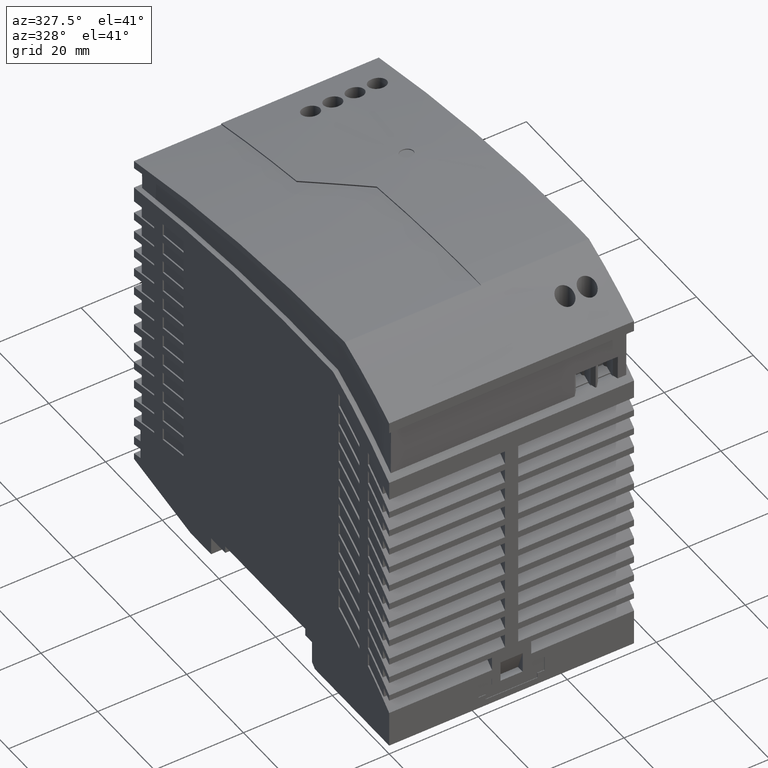
[diagram: clean part render]
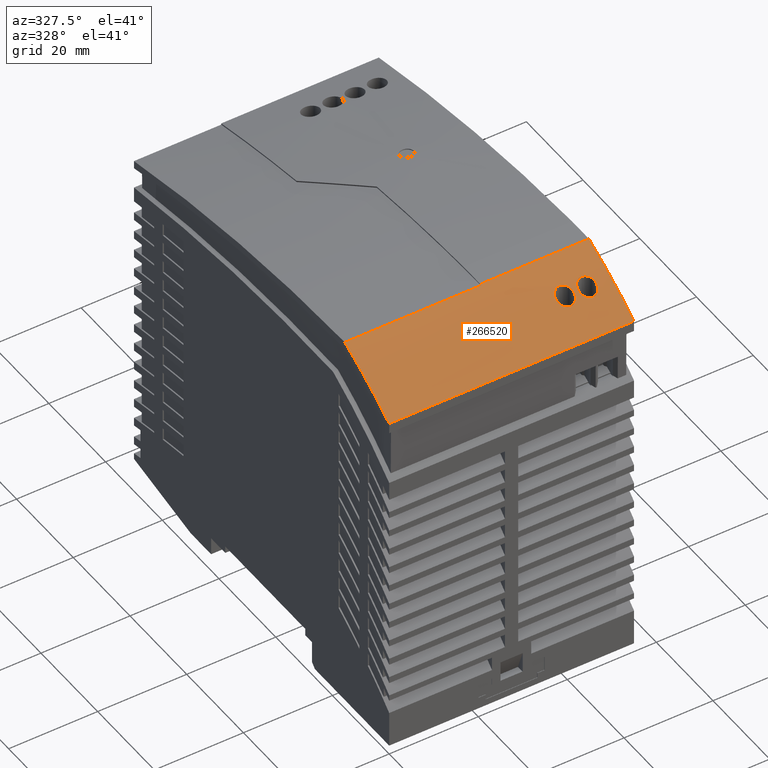
[diagram: same view with one face highlighted and labeled with its STEP entity id]
A machine part, auxiliary view. The second image highlights one B-rep face of the part: STEP entity #266520.
In plain terms, the highlighted cylindrical surface (partial cylindrical patch) has radius 100 mm, axis along (1, 0, 0).
Its self-contained STEP definition (entity closure, byte-faithful):
#6580=CARTESIAN_POINT('',(12.017640978482,-1.26055365418718,-54.));
#6590=DIRECTION('',(0.,0.,1.));
#6600=DIRECTION('',(0.,1.,0.));
#6610=AXIS2_PLACEMENT_3D('',#6580,#6590,#6600);
#6620=CIRCLE('',#6610,99.9999999999983);
#6630=CARTESIAN_POINT('',(-29.3456671638463,89.783813220005,-54.));
#6640=VERTEX_POINT('',#6630);
#6650=CARTESIAN_POINT('',(-45.0015236073532,80.8906171830753,-54.));
#6660=VERTEX_POINT('',#6650);
#6670=EDGE_CURVE('',#6640,#6660,#6620,.T.);
#174490=CARTESIAN_POINT('',(-34.8015236073671,87.1021411184533,-4.3));
#174500=VERTEX_POINT('',#174490);
#174530=CARTESIAN_POINT('',(12.017640978482,-1.26055365418718,1.));
#174540=DIRECTION('',(0.,0.,1.));
#174550=DIRECTION('',(0.,1.,0.));
#174560=AXIS2_PLACEMENT_3D('',#174530,#174540,#174550);
#174570=CYLINDRICAL_SURFACE('',#174560,99.9999999999983);
#174580=CARTESIAN_POINT('',(-36.8015236073671,78.9377474108009,-4.3));
#174590=DIRECTION('',(0.,-1.,0.));
#174600=DIRECTION('',(1.,0.,0.));
#174610=AXIS2_PLACEMENT_3D('',#174580,#174590,#174600);
#174620=CYLINDRICAL_SURFACE('',#174610,2.);
#174630=CARTESIAN_POINT('',(-38.4414010123466,85.075331592722,
-3.15509734185036));
#174640=CARTESIAN_POINT('',(-38.1916399297822,85.2213045553754,
-2.79735727283658));
#174650=CARTESIAN_POINT('',(-37.8405312535754,85.4248265798148,
-2.54402253402529));
#174660=CARTESIAN_POINT('',(-37.4592635155472,85.6418969538847,
-2.4112495630213));
#174670=CARTESIAN_POINT('',(-37.0755907904811,85.8603365794905,
-2.27763907747729));
#174680=CARTESIAN_POINT('',(-36.6638870953066,86.0910703282754,
-2.26439488354883));
#174690=CARTESIAN_POINT('',(-36.2748448652582,86.3056259531921,
-2.37059348435572));
#174700=CARTESIAN_POINT('',(-35.8823355676671,86.5220936554767,
-2.47773850612542));
#174710=CARTESIAN_POINT('',(-35.5150580771663,86.7209175869106,
-2.70715846185063));
#174720=CARTESIAN_POINT('',(-35.2409214758194,86.8679223042267,
-3.04919186642632));
#174730=CARTESIAN_POINT('',(-34.9942751883984,87.0001854445051,
-3.35692629151978));
#174740=CARTESIAN_POINT('',(-34.8347585509681,87.0845294180265,
-3.74637430460408));
#174750=CARTESIAN_POINT('',(-34.8061988678249,87.099663763195,
-4.16332818955215));
#174760=CARTESIAN_POINT('',(-34.8030854753441,87.1013136119071,
-4.20878181324091));
#174770=CARTESIAN_POINT('',(-34.8015236073671,87.1021411184533,
-4.25440728567266));
#174780=CARTESIAN_POINT('',(-34.8015236073671,87.1021411184533,-4.3));
#174790=B_SPLINE_CURVE_WITH_KNOTS('',3,(#174630,#174640,#174650,#174660,
#174670,#174680,#174690,#174700,#174710,#174720,#174730,#174740,#174750,
#174760,#174770,#174780),.UNSPECIFIED.,.F.,.F.,(4,3,3,3,3,4),(0.,
1.37640965345923,2.75067905799001,4.12970540128265,5.37033487401066,
5.50714317967586),.UNSPECIFIED.);
#174800=SURFACE_CURVE('',#174790,(#174570,#174620),.CURVE_3D.);
#174810=CARTESIAN_POINT('',(-38.4414010123466,85.075331592722,
-3.15509734185037));
#174820=VERTEX_POINT('',#174810);
#174830=EDGE_CURVE('',#174820,#174500,#174800,.T.);
#174850=CARTESIAN_POINT('',(-38.8015236073671,84.8638477126498,-4.3));
#174860=CARTESIAN_POINT('',(-38.8015236073671,84.8638477126498,
-4.19708029144073));
#174870=CARTESIAN_POINT('',(-38.7935148856833,84.8685748905205,
-4.09341039094466));
#174880=CARTESIAN_POINT('',(-38.77753569418,84.8779976848778,
-3.99116957279219));
#174890=CARTESIAN_POINT('',(-38.7615569290885,84.8874202277835,
-3.88893148298152));
#174900=CARTESIAN_POINT('',(-38.73764590357,84.9015153813996,
-3.78837659154264));
#174910=CARTESIAN_POINT('',(-38.7067292453512,84.9197124477178,
-3.69156637420866));
#174920=CARTESIAN_POINT('',(-38.675891830106,84.9378628728488,
-3.59500429266752));
#174930=CARTESIAN_POINT('',(-38.6379074511691,84.9601984217406,
-3.50139114449522));
#174940=CARTESIAN_POINT('',(-38.5932981280277,84.9863758143853,
-3.41143707757276));
#174950=CARTESIAN_POINT('',(-38.5487149271022,85.0125378781378,
-3.32153568572802));
#174960=CARTESIAN_POINT('',(-38.4976518360518,85.0424557767477,
-3.23566703408492));
#174970=CARTESIAN_POINT('',(-38.4414010123465,85.075331592722,
-3.15509734185036));
#174980=B_SPLINE_CURVE_WITH_KNOTS('',3,(#174850,#174860,#174870,#174880,
#174890,#174900,#174910,#174920,#174930,#174940,#174950,#174960,#174970)
,.UNSPECIFIED.,.F.,.F.,(4,3,3,3,4),(0.,0.310500280495428,
0.621568672458262,0.931416759487738,1.2427008436046),.UNSPECIFIED.);
#174990=SURFACE_CURVE('',#174980,(#174570,#174620),.CURVE_3D.);
#175000=CARTESIAN_POINT('',(-38.8015236073671,84.8638477126498,-4.3));
#175010=VERTEX_POINT('',#175000);
#175020=EDGE_CURVE('',#175010,#174820,#174990,.T.);
#258620=CARTESIAN_POINT('',(12.017640978482,-1.26055365418718,1.));
#258630=DIRECTION('',(0.,0.,1.));
#258640=DIRECTION('',(0.,1.,0.));
#258650=AXIS2_PLACEMENT_3D('',#258620,#258630,#258640);
#258660=CIRCLE('',#258650,99.9999999999983);
#258670=CARTESIAN_POINT('',(-29.0910272099849,89.8990722762113,1.));
#258680=VERTEX_POINT('',#258670);
#258690=CARTESIAN_POINT('',(-45.0015236073532,80.8906171830753,1.));
#258700=VERTEX_POINT('',#258690);
#258710=EDGE_CURVE('',#258680,#258700,#258660,.T.);
#264920=CARTESIAN_POINT('',(-29.0910272099849,89.8990722762113,1.));
#264930=DIRECTION('',(0.,0.,-1.));
#264940=VECTOR('',#264930,1.);
#264950=LINE('',#264920,#264940);
#264960=CARTESIAN_POINT('',(-29.0910272099849,89.8990722762113,-23.4));
#264970=VERTEX_POINT('',#264960);
#264980=EDGE_CURVE('',#258680,#264970,#264950,.T.);
#265160=CARTESIAN_POINT('',(12.017640978482,-1.26055365418718,1.));
#265170=DIRECTION('',(0.,0.,1.));
#265180=DIRECTION('',(0.,1.,0.));
#265190=AXIS2_PLACEMENT_3D('',#265160,#265170,#265180);
#265200=CYLINDRICAL_SURFACE('',#265190,99.9999999999983);
#265210=ORIENTED_EDGE('',*,*,#174830,.F.);
#265220=CARTESIAN_POINT('',(-34.8015236073671,87.1021411184533,-4.3));
#265230=CARTESIAN_POINT('',(-34.8015236073671,87.1021411184533,
-4.58271273111016));
#265240=CARTESIAN_POINT('',(-34.861810663569,87.0702641101342,
-4.860736126078));
#265250=CARTESIAN_POINT('',(-34.9746908483369,87.0101705383661,
-5.11405286716181));
#265260=CARTESIAN_POINT('',(-35.086455690613,86.9506707370124,
-5.36486664525182));
#265270=CARTESIAN_POINT('',(-35.2477752789715,86.8645176253252,
-5.58639813084341));
#265280=CARTESIAN_POINT('',(-35.4401417351855,86.760800913338,
-5.76514142597074));
#265290=CARTESIAN_POINT('',(-35.825846405436,86.5528435543274,
-6.12353095532753));
#265300=CARTESIAN_POINT('',(-36.3222718108783,86.2812395931609,
-6.30212258304531));
#265310=CARTESIAN_POINT('',(-36.8103010461347,86.008181169045,
-6.29998073904934));
#265320=CARTESIAN_POINT('',(-37.2982216318989,85.7351835356707,
-6.2978393718901));
#265330=CARTESIAN_POINT('',(-37.7899139517766,85.4539201559894,
-6.11484639830372));
#265340=CARTESIAN_POINT('',(-38.1694024298831,85.2337275089428,
-5.75907762881625));
#265350=CARTESIAN_POINT('',(-38.3597034907969,85.1233080976672,
-5.58067122604138));
#265360=CARTESIAN_POINT('',(-38.5182149662104,85.0304885119365,
-5.3622698064678));
#265370=CARTESIAN_POINT('',(-38.6296235794948,84.9650492303044,
-5.11120311384202));
#265380=CARTESIAN_POINT('',(-38.7416663308773,84.899237468122,
-4.85870734899048));
#265390=CARTESIAN_POINT('',(-38.8015236073671,84.8638477126498,
-4.58154769226752));
#265400=CARTESIAN_POINT('',(-38.8015236073671,84.8638477126498,-4.3));
#265410=B_SPLINE_CURVE_WITH_KNOTS('',3,(#265220,#265230,#265240,#265250,
#265260,#265270,#265280,#265290,#265300,#265310,#265320,#265330,#265340,
#265350,#265360,#265370,#265380,#265390,#265400),.UNSPECIFIED.,.F.,.F.,(
4,3,3,3,3,3,4),(0.,0.845007563337847,1.68943431270762,3.37484337737721,
5.06208987075319,5.90700425554803,6.75028831396444),.UNSPECIFIED.);
#265420=SURFACE_CURVE('',#265410,(#174570,#174620),.CURVE_3D.);
#265430=EDGE_CURVE('',#174500,#175010,#265420,.T.);
#265440=ORIENTED_EDGE('',*,*,#265430,.F.);
#265450=ORIENTED_EDGE('',*,*,#175020,.F.);
#265460=EDGE_LOOP('',(#265450,#265440,#265210));
#265470=FACE_BOUND('',#265460,.T.);
#265480=CARTESIAN_POINT('',(-36.8015236073671,78.9377474108008,-9.3));
#265490=DIRECTION('',(0.,-1.,0.));
#265500=DIRECTION('',(1.,0.,0.));
#265510=AXIS2_PLACEMENT_3D('',#265480,#265490,#265500);
#265520=CYLINDRICAL_SURFACE('',#265510,2.);
#265530=CARTESIAN_POINT('',(12.017640978482,-1.2605536541872,
-4.38259999999997));
#265540=DIRECTION('',(0.,0.,1.));
#265550=DIRECTION('',(0.,1.,0.));
#265560=AXIS2_PLACEMENT_3D('',#265530,#265540,#265550);
#265570=CYLINDRICAL_SURFACE('',#265560,99.9999999999983);
#265580=CARTESIAN_POINT('',(-38.8015236073671,84.8638477126498,-9.3));
#265590=CARTESIAN_POINT('',(-38.8015236073671,84.8638477126498,
-9.58240084590799));
#265600=CARTESIAN_POINT('',(-38.7404421314992,84.8999567509554,
-9.8615677638122));
#265610=CARTESIAN_POINT('',(-38.6295012324462,84.9651210944961,
-10.11147877496));
#265620=CARTESIAN_POINT('',(-38.5178353889045,85.0307112551349,
-10.3630228322766));
#265630=CARTESIAN_POINT('',(-38.3585181299724,85.1239942593859,
-10.5816468854503));
#265640=CARTESIAN_POINT('',(-38.1699598082352,85.2334040958938,
-10.7585548889752));
#265650=CARTESIAN_POINT('',(-37.7903991703555,85.453641882021,
-11.1146638850955));
#265660=CARTESIAN_POINT('',(-37.2998179881663,85.7342895327748,
-11.2978050597796));
#265670=CARTESIAN_POINT('',(-36.8104126189879,86.0081187425111,
-11.2999802462705));
#265680=CARTESIAN_POINT('',(-36.3222906589549,86.2812298667213,
-11.3021497285858));
#265690=CARTESIAN_POINT('',(-35.8252295291128,86.5531777543919,
-11.1230968973656));
#265700=CARTESIAN_POINT('',(-35.4398578332964,86.7609539819011,
-10.7648775784124));
#265710=CARTESIAN_POINT('',(-35.2469430083615,86.8649655504484,
-10.5855550750881));
#265720=CARTESIAN_POINT('',(-35.0868348665277,86.9504691123182,
-10.3658378194489));
#265730=CARTESIAN_POINT('',(-34.974546405634,87.0102474345981,
-10.1137286429452));
#265740=CARTESIAN_POINT('',(-34.8618808570708,87.0702265047381,
-9.86077283214716));
#265750=CARTESIAN_POINT('',(-34.8015236073671,87.1021411184533,
-9.58364081700138));
#265760=CARTESIAN_POINT('',(-34.8015236073671,87.1021411184533,-9.3));
#265770=B_SPLINE_CURVE_WITH_KNOTS('',3,(#265580,#265590,#265600,#265610,
#265620,#265630,#265640,#265650,#265660,#265670,#265680,#265690,#265700,
#265710,#265720,#265730,#265740,#265750,#265760),.UNSPECIFIED.,.F.,.F.,(
4,3,3,3,3,3,4),(0.,0.843594027500316,1.68736858919655,3.37531788904383,
5.06127204508722,5.90564525478498,6.75028970198063),.UNSPECIFIED.);
#265780=SURFACE_CURVE('',#265770,(#265520,#265570),.CURVE_3D.);
#265790=CARTESIAN_POINT('',(-38.8015236073671,84.8638477126498,-9.3));
#265800=VERTEX_POINT('',#265790);
#265810=CARTESIAN_POINT('',(-34.8015236073671,87.1021411184533,-9.3));
#265820=VERTEX_POINT('',#265810);
#265830=EDGE_CURVE('',#265800,#265820,#265780,.T.);
#265840=ORIENTED_EDGE('',*,*,#265830,.T.);
#265850=CARTESIAN_POINT('',(-38.4414010123486,85.0753315927208,
-8.1550973418533));
#265860=CARTESIAN_POINT('',(-38.4975254687192,85.0425296321847,
-8.23548603447636));
#265870=CARTESIAN_POINT('',(-38.5481122803177,85.0128912388054,
-8.3204231529528));
#265880=CARTESIAN_POINT('',(-38.5928971896197,84.9866110895585,
-8.41062904881731));
#265890=CARTESIAN_POINT('',(-38.6376169850207,84.9603691496787,
-8.50070379207092));
#265900=CARTESIAN_POINT('',(-38.6760595922823,84.937764315567,
-8.5953187690841));
#265910=CARTESIAN_POINT('',(-38.7071128022955,84.9194866908906,
-8.69276872596038));
#265920=CARTESIAN_POINT('',(-38.7381961162662,84.9011913473105,
-8.79031315388669));
#265930=CARTESIAN_POINT('',(-38.7617583110595,84.8873014929307,
-8.8900599645489));
#265940=CARTESIAN_POINT('',(-38.7776100394539,84.8779538440539,
-8.99164563741944));
#265950=CARTESIAN_POINT('',(-38.7934808829299,84.8685949231526,
-9.0933538091356));
#265960=CARTESIAN_POINT('',(-38.8015236073671,84.8638477126498,
-9.19689171633746));
#265970=CARTESIAN_POINT('',(-38.8015236073671,84.8638477126498,-9.3));
#265980=B_SPLINE_CURVE_WITH_KNOTS('',3,(#265850,#265860,#265870,#265880,
#265890,#265900,#265910,#265920,#265930,#265940,#265950,#265960,#265970)
,.UNSPECIFIED.,.F.,.F.,(4,3,3,3,4),(0.,0.310351874239905,
0.622414247669832,0.932684386805454,1.24270084485499),.UNSPECIFIED.);
#265990=SURFACE_CURVE('',#265980,(#265520,#265570),.CURVE_3D.);
#266000=CARTESIAN_POINT('',(-38.4414010123486,85.0753315927208,
-8.15509734185328));
#266010=VERTEX_POINT('',#266000);
#266020=EDGE_CURVE('',#266010,#265800,#265990,.T.);
#266030=ORIENTED_EDGE('',*,*,#266020,.T.);
#266040=CARTESIAN_POINT('',(-34.8015236073671,87.1021411184533,-9.3));
#266050=CARTESIAN_POINT('',(-34.8015236073671,87.1021411184533,
-9.25429666783019));
#266060=CARTESIAN_POINT('',(-34.803092967716,87.1013096419371,
-9.20863063689837));
#266070=CARTESIAN_POINT('',(-34.8062074556467,87.0996592123366,
-9.16320287033738));
#266080=CARTESIAN_POINT('',(-34.8347699434757,87.0845233773536,
-8.74659183881163));
#266090=CARTESIAN_POINT('',(-34.993893885282,87.000390620006,
-8.35730368857446));
#266100=CARTESIAN_POINT('',(-35.2411162250705,86.8678178703995,
-8.04894892139397));
#266110=CARTESIAN_POINT('',(-35.5149705844523,86.7209637250742,
-7.70737664560051));
#266120=CARTESIAN_POINT('',(-35.8831353189737,86.5216469238831,
-7.47773230499126));
#266130=CARTESIAN_POINT('',(-36.2738715365213,86.3061627340214,
-7.37085944209951));
#266140=CARTESIAN_POINT('',(-36.663446528717,86.091318939631,
-7.26430419368074));
#266150=CARTESIAN_POINT('',(-37.0746906086801,85.8608345571791,
-7.27789134487692));
#266160=CARTESIAN_POINT('',(-37.456775731933,85.6433132975421,
-7.41038505159071));
#266170=CARTESIAN_POINT('',(-37.8397382162619,85.4252925557877,
-7.54318299632373));
#266180=CARTESIAN_POINT('',(-38.1905282878836,85.2219542549189,
-7.79576503578441));
#266190=CARTESIAN_POINT('',(-38.4414010123486,85.0753315927208,
-8.1550973418533));
#266200=B_SPLINE_CURVE_WITH_KNOTS('',3,(#266040,#266050,#266060,#266070,
#266080,#266090,#266100,#266110,#266120,#266130,#266140,#266150,#266160,
#266170,#266180,#266190),.UNSPECIFIED.,.F.,.F.,(4,3,3,3,3,4),(0.,
0.136934001176903,1.37776613446779,2.7553206008613,4.12774155627872,
5.50714320491791),.UNSPECIFIED.);
#266210=SURFACE_CURVE('',#266200,(#265520,#265570),.CURVE_3D.);
#266220=EDGE_CURVE('',#265820,#266010,#266210,.T.);
#266230=ORIENTED_EDGE('',*,*,#266220,.T.);
#266240=EDGE_LOOP('',(#266230,#266030,#265840));
#266250=FACE_BOUND('',#266240,.T.);
#266260=CARTESIAN_POINT('',(-29.3456671638458,89.7838132200049,1.));
#266270=DIRECTION('',(0.,0.,1.));
#266280=VECTOR('',#266270,1.);
#266290=LINE('',#266260,#266280);
#266300=CARTESIAN_POINT('',(-29.345667163846,89.783813220005,-23.4));
#266310=VERTEX_POINT('',#266300);
#266320=EDGE_CURVE('',#6640,#266310,#266290,.T.);
#266330=ORIENTED_EDGE('',*,*,#266320,.F.);
#266340=CARTESIAN_POINT('',(12.017640978482,-1.26055365418718,-23.4));
#266350=DIRECTION('',(0.,0.,1.));
#266360=DIRECTION('',(0.,1.,0.));
#266370=AXIS2_PLACEMENT_3D('',#266340,#266350,#266360);
#266380=CIRCLE('',#266370,99.9999999999983);
#266390=EDGE_CURVE('',#264970,#266310,#266380,.T.);
#266400=ORIENTED_EDGE('',*,*,#266390,.T.);
#266410=ORIENTED_EDGE('',*,*,#264980,.T.);
#266420=ORIENTED_EDGE('',*,*,#258710,.F.);
#266430=CARTESIAN_POINT('',(-45.0015236073532,80.8906171830753,1.));
#266440=DIRECTION('',(0.,0.,1.));
#266450=VECTOR('',#266440,1.);
#266460=LINE('',#266430,#266450);
#266470=EDGE_CURVE('',#6660,#258700,#266460,.T.);
#266480=ORIENTED_EDGE('',*,*,#266470,.T.);
#266490=ORIENTED_EDGE('',*,*,#6670,.T.);
#266500=EDGE_LOOP('',(#266490,#266480,#266420,#266410,#266400,#266330));
#266510=FACE_OUTER_BOUND('',#266500,.T.);
#266520=ADVANCED_FACE('',(#265470,#266250,#266510),#265200,.T.);